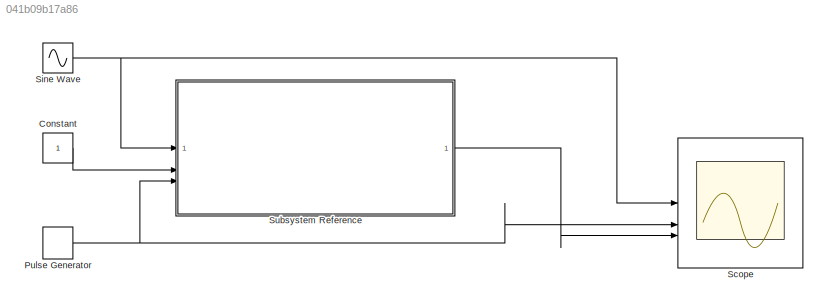
MODEL slx_041b09b17a86
KIND model
CONFIG AbsTol = auto
CONFIG EnableMultiTasking = off
CONFIG FixedStep = auto
CONFIG MaxStep = auto
CONFIG MinStep = auto
CONFIG RelTol = 1e-3
CONFIG SampleTimeConstraint = Unconstrained
CONFIG SolverName = VariableStepAuto
CONFIG StartTime = 0.0
CONFIG StopTime = 3
BLOCK [Constant] Constant
BLOCK [DiscretePulseGenerator] Pulse Generator
  Period = 0.1
  PulseType = Time based
  PulseWidth = 50
BLOCK [Scope] Scope
  Floating = off
  NumInputPorts = 3
  ScopeSpecificationString = Simulink.scopes.TimeScopeBlockCfg('CurrentConfiguration', extmgr.ConfigurationSet(extmgr.Configuration('Core','General UI',true,'FigureColor',[1 1 1]),extmgr.Configuration('Core','Source UI',true),extmgr.Configuration('Sources','WiredSimulink',true),extmgr.Configuration('Visuals','Time Domain',true,'SerializedDisplays',{struct('MinYLimReal','-0.24989','MaxYLimReal','2.24903','YLabelReal','','MinYL...<+1568ch>
BLOCK [Sin] Sine Wave
  Amplitude = 128
  SampleTime = 0
BLOCK [SubSystem] Subsystem Reference
  ReferencedSubsystem = DAC
LINE Constant:1 -> Subsystem Reference:2
NET Pulse Generator:1 -> Scope:2, Subsystem Reference:3
NET Sine Wave:1 -> Scope:1, Subsystem Reference:1
LINE Subsystem Reference:1 -> Scope:3
note: NET lines group one-source signal fan-out (src -> all destinations, sorted); 1:1 wires keep LINE
